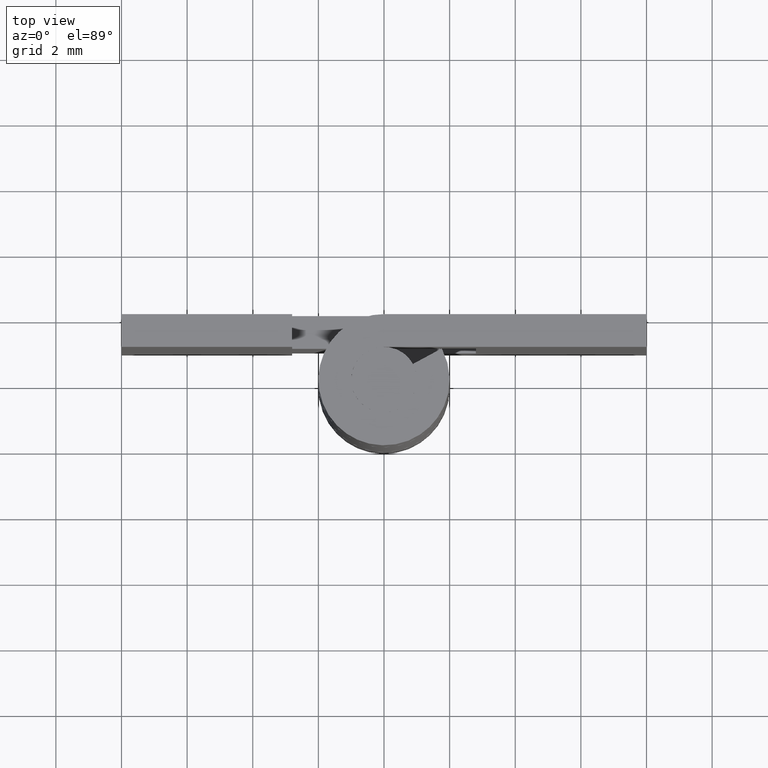
[diagram: clean part render]
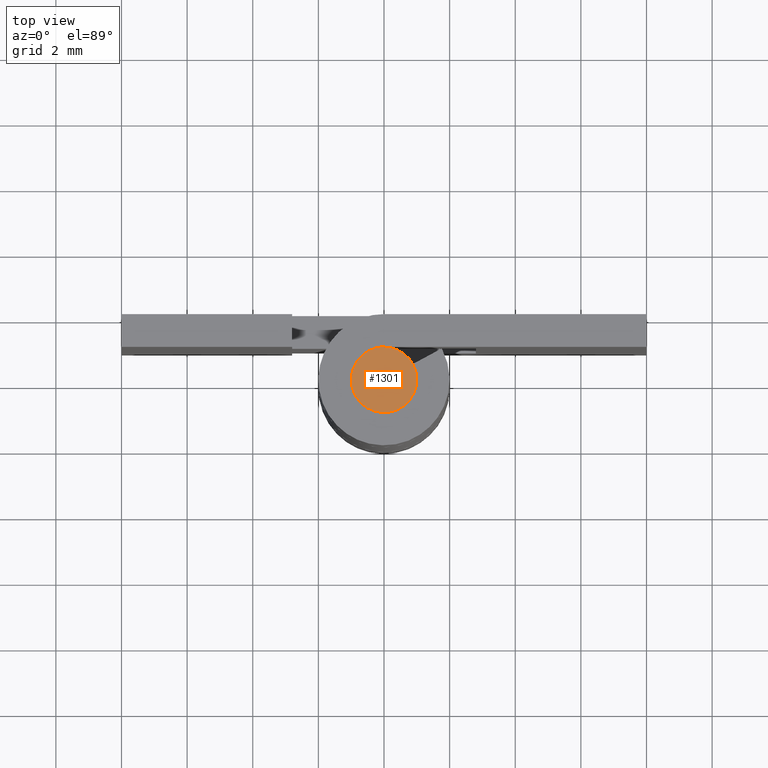
[diagram: same view with one face highlighted and labeled with its STEP entity id]
A machine part, top view. The second image highlights one B-rep face of the part: STEP entity #1301.
In plain terms, the highlighted face is a freeform B-spline surface patch.
Its self-contained STEP definition (entity closure, byte-faithful):
#1133=CARTESIAN_POINT('',(0.118034234664490,-0.993009526362747,15.0));
#1134=VERTEX_POINT('',#1133);
#1140=CARTESIAN_POINT('',(-1.0,0.0,15.0));
#1141=VERTEX_POINT('',#1140);
#1142=CARTESIAN_POINT('',(0.118034234664489,-0.993009526362747,15.000000000000002));
#1143=CARTESIAN_POINT('',(0.059224119659723,-1.0,15.000000000000004));
#1144=CARTESIAN_POINT('',(0.0,-1.0,15.0));
#1145=CARTESIAN_POINT('',(-1.0,-1.0,14.999999999999995));
#1146=CARTESIAN_POINT('',(-1.0,0.0,15.0));
#1154=(BOUNDED_CURVE()B_SPLINE_CURVE(2,(#1142,#1143,#1144,#1145,#1146),.UNSPECIFIED.,.F.,.U.)B_SPLINE_CURVE_WITH_KNOTS((3,2,3),(0.229562473513013,0.250000000000000,0.500000000000000),.UNSPECIFIED.)CURVE()GEOMETRIC_REPRESENTATION_ITEM()RATIONAL_B_SPLINE_CURVE((0.956026754182728,0.976055948330564,1.0,0.707106781186548,1.0))REPRESENTATION_ITEM(''));
#1155=EDGE_CURVE('',#1134,#1141,#1154,.T.);
#1157=CARTESIAN_POINT('',(-0.061046718028499,0.998134909826632,15.0));
#1158=VERTEX_POINT('',#1157);
#1159=CARTESIAN_POINT('',(-1.0,0.0,15.0));
#1160=CARTESIAN_POINT('',(-1.0,0.940707786819043,15.000000000000005));
#1161=CARTESIAN_POINT('',(-0.061046718028499,0.998134909826632,14.999999999999998));
#1169=(BOUNDED_CURVE()B_SPLINE_CURVE(2,(#1159,#1160,#1161),.UNSPECIFIED.,.F.,.U.)B_SPLINE_CURVE_WITH_KNOTS((3,3),(0.500000000000000,0.739333277124436),.UNSPECIFIED.)CURVE()GEOMETRIC_REPRESENTATION_ITEM()RATIONAL_B_SPLINE_CURVE((1.0,0.719603624375408,0.976072716527199))REPRESENTATION_ITEM(''));
#1170=EDGE_CURVE('',#1141,#1158,#1169,.T.);
#1244=CARTESIAN_POINT('',(1.0,0.0,15.0));
#1245=VERTEX_POINT('',#1244);
#1246=CARTESIAN_POINT('',(-0.061046718028499,0.998134909826632,14.999999999999998));
#1247=CARTESIAN_POINT('',(-0.030551849991874,1.0,15.000000000000002));
#1248=CARTESIAN_POINT('',(0.0,1.0,15.0));
#1249=CARTESIAN_POINT('',(1.0,1.0,14.999999999999995));
#1250=CARTESIAN_POINT('',(1.0,0.0,15.0));
#1258=(BOUNDED_CURVE()B_SPLINE_CURVE(2,(#1246,#1247,#1248,#1249,#1250),.UNSPECIFIED.,.F.,.U.)B_SPLINE_CURVE_WITH_KNOTS((3,2,3),(0.739333277124436,0.750000000000000,1.0),.UNSPECIFIED.)CURVE()GEOMETRIC_REPRESENTATION_ITEM()RATIONAL_B_SPLINE_CURVE((0.976072716527199,0.987503156811140,1.0,0.707106781186548,1.0))REPRESENTATION_ITEM(''));
#1259=EDGE_CURVE('',#1158,#1245,#1258,.T.);
#1261=CARTESIAN_POINT('',(1.0,0.0,15.0));
#1262=CARTESIAN_POINT('',(1.0,-0.888174525937440,15.0));
#1263=CARTESIAN_POINT('',(0.118034234664490,-0.993009526362747,14.999999999999996));
#1271=(BOUNDED_CURVE()B_SPLINE_CURVE(2,(#1261,#1262,#1263),.UNSPECIFIED.,.F.,.U.)B_SPLINE_CURVE_WITH_KNOTS((3,3),(0.0,0.229562473513013),.UNSPECIFIED.)CURVE()GEOMETRIC_REPRESENTATION_ITEM()RATIONAL_B_SPLINE_CURVE((1.0,0.731050832855983,0.956026754182728))REPRESENTATION_ITEM(''));
#1272=EDGE_CURVE('',#1245,#1134,#1271,.T.);
#1290=CARTESIAN_POINT('',(-1.099899996123612,-1.099881864535486,15.0));
#1291=CARTESIAN_POINT('',(1.099900049767792,-1.099881864535486,15.0));
#1292=CARTESIAN_POINT('',(-1.099899996123612,1.099875659691965,15.0));
#1293=CARTESIAN_POINT('',(1.099900049767792,1.099875659691965,15.0));
#1294=B_SPLINE_SURFACE_WITH_KNOTS('',1,1,((#1290,#1292),(#1291,#1293)),.UNSPECIFIED.,.F.,.F.,.U.,(2,2),(2,2),(0.0,2.199800045891404),(0.0,2.199757524227450),.UNSPECIFIED.);
#1295=ORIENTED_EDGE('',*,*,#1259,.F.);
#1296=ORIENTED_EDGE('',*,*,#1170,.F.);
#1297=ORIENTED_EDGE('',*,*,#1155,.F.);
#1298=ORIENTED_EDGE('',*,*,#1272,.F.);
#1299=EDGE_LOOP('',(#1295,#1296,#1297,#1298));
#1300=FACE_OUTER_BOUND('',#1299,.T.);
#1301=ADVANCED_FACE('',(#1300),#1294,.T.);